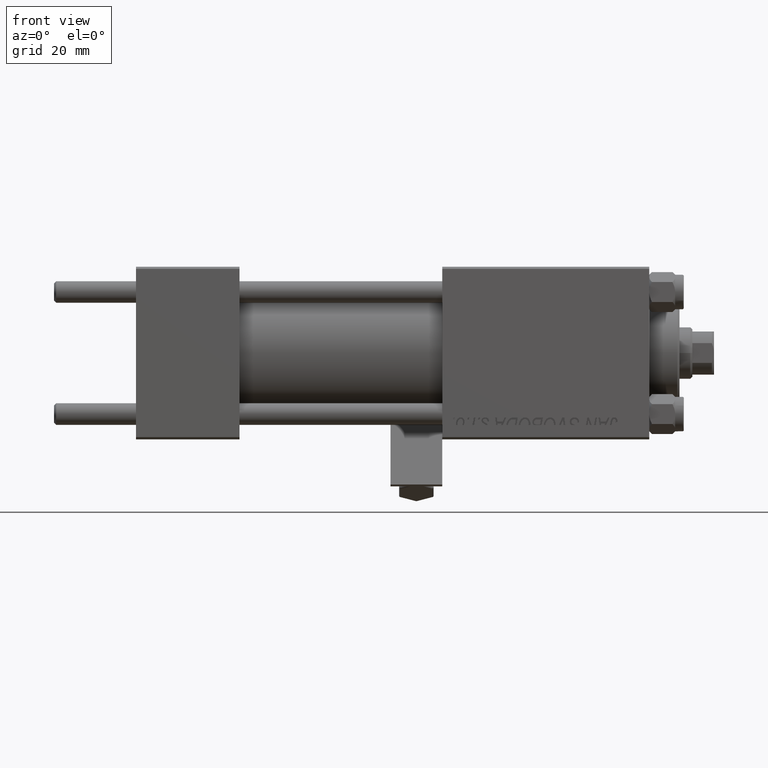
[diagram: clean part render]
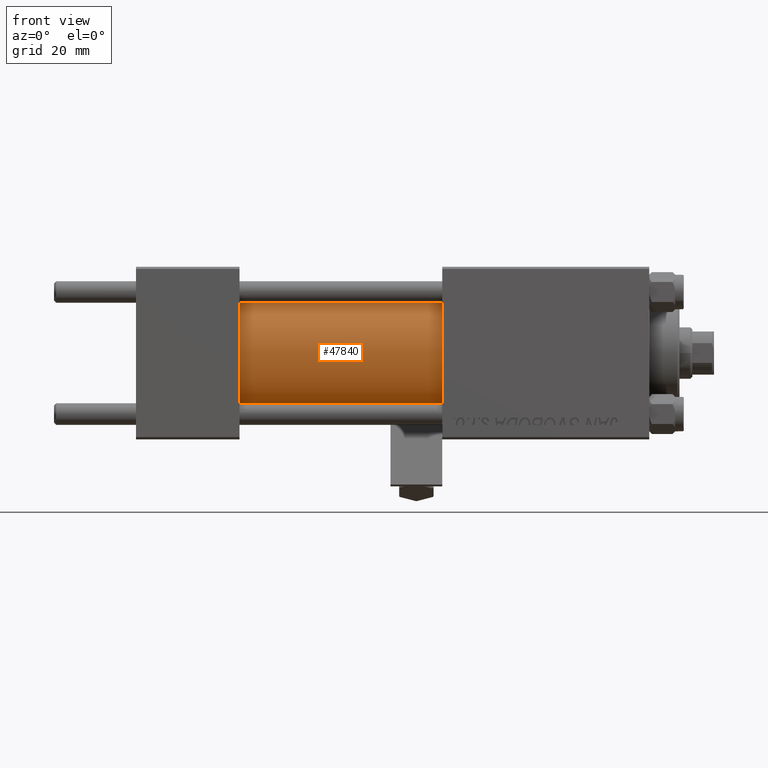
[diagram: same view with one face highlighted and labeled with its STEP entity id]
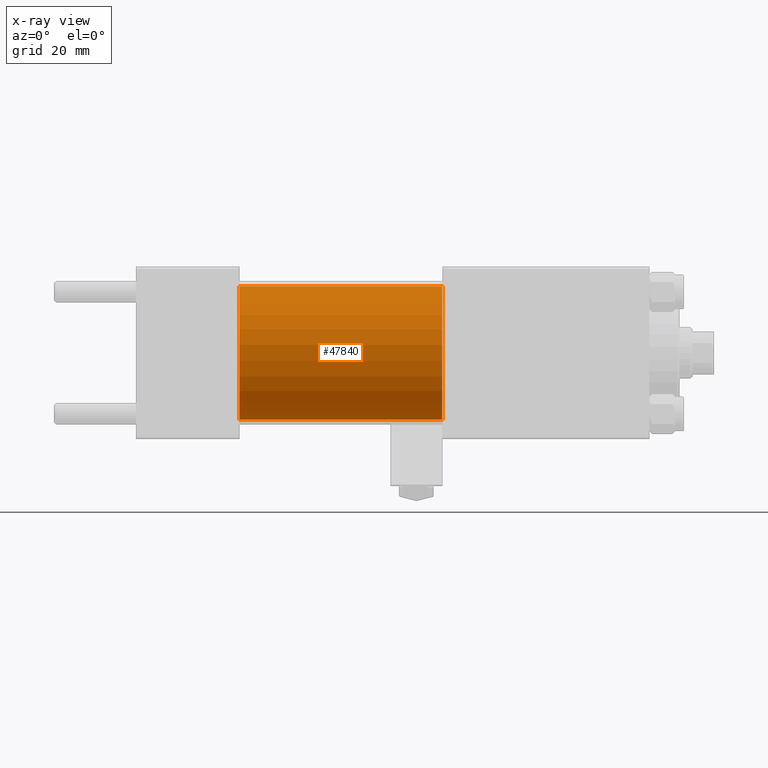
[diagram: x-ray of the same camera — body ghosted, the highlighted face saturated]
A machine part, front view. The second image highlights one B-rep face of the part: STEP entity #47840.
The next image is the same camera in x-ray: the body ghosted, the highlighted face saturated — about 0% of this face is hidden behind the body in this view.
In plain terms, the highlighted cylindrical surface (partial cylindrical patch) has radius 15.5 mm, axis along (-1, -0, -0).
Its self-contained STEP definition (entity closure, byte-faithful):
#1912 = CARTESIAN_POINT ( 'NONE',  ( 24.00000000000000000, 0.000000000000000000, 15.50000000000000000 ) ) ;
#1923 = LINE ( 'NONE', #45106, #32257 ) ;
#3569 = CARTESIAN_POINT ( 'NONE',  ( 71.00000000000001421, 0.000000000000000000, 15.50000000000000000 ) ) ;
#9900 = DIRECTION ( 'NONE',  ( -1.000000000000000000, -0.000000000000000000, -0.000000000000000000 ) ) ;
#10296 = DIRECTION ( 'NONE',  ( 0.000000000000000000, 0.000000000000000000, 1.000000000000000000 ) ) ;
#11322 = AXIS2_PLACEMENT_3D ( 'NONE', #11450, #30703, #27109 ) ;
#11450 = CARTESIAN_POINT ( 'NONE',  ( 71.00000000000001421, 0.000000000000000000, 0.000000000000000000 ) ) ;
#12387 = CARTESIAN_POINT ( 'NONE',  ( 24.00000000000000000, 0.000000000000000000, 0.000000000000000000 ) ) ;
#14416 = DIRECTION ( 'NONE',  ( 1.000000000000000000, 0.000000000000000000, 0.000000000000000000 ) ) ;
#15523 = DIRECTION ( 'NONE',  ( -1.000000000000000000, -0.000000000000000000, -0.000000000000000000 ) ) ;
#16282 = VERTEX_POINT ( 'NONE', #1912 ) ;
#16838 = CARTESIAN_POINT ( 'NONE',  ( 24.00000000000000000, 1.898202538678397557E-15, -15.50000000000000000 ) ) ;
#21573 = VERTEX_POINT ( 'NONE', #23873 ) ;
#21763 = ORIENTED_EDGE ( 'NONE', *, *, #49538, .F. ) ;
#23873 = CARTESIAN_POINT ( 'NONE',  ( 71.00000000000001421, 1.898202538678397557E-15, -15.50000000000000000 ) ) ;
#26957 = VERTEX_POINT ( 'NONE', #3569 ) ;
#27109 = DIRECTION ( 'NONE',  ( 0.000000000000000000, 0.000000000000000000, -1.000000000000000000 ) ) ;
#29158 = AXIS2_PLACEMENT_3D ( 'NONE', #12387, #14416, #10296 ) ;
#29407 = DIRECTION ( 'NONE',  ( 0.000000000000000000, 0.000000000000000000, 1.000000000000000000 ) ) ;
#30703 = DIRECTION ( 'NONE',  ( 1.000000000000000000, 0.000000000000000000, 0.000000000000000000 ) ) ;
#31087 = EDGE_CURVE ( 'NONE', #21573, #41878, #35772, .T. ) ;
#31252 = ORIENTED_EDGE ( 'NONE', *, *, #43340, .T. ) ;
#32257 = VECTOR ( 'NONE', #9900, 1000.000000000000000 ) ;
#33425 = CIRCLE ( 'NONE', #11322, 15.50000000000000000 ) ;
#33754 = CYLINDRICAL_SURFACE ( 'NONE', #44055, 15.50000000000000000 ) ;
#35772 = LINE ( 'NONE', #43498, #49382 ) ;
#39006 = EDGE_CURVE ( 'NONE', #26957, #16282, #1923, .T. ) ;
#39757 = ORIENTED_EDGE ( 'NONE', *, *, #31087, .F. ) ;
#41489 = FACE_OUTER_BOUND ( 'NONE', #46762, .T. ) ;
#41878 = VERTEX_POINT ( 'NONE', #16838 ) ;
#42003 = CARTESIAN_POINT ( 'NONE',  ( 71.00000000000001421, 0.000000000000000000, 0.000000000000000000 ) ) ;
#43340 = EDGE_CURVE ( 'NONE', #16282, #41878, #48028, .T. ) ;
#43498 = CARTESIAN_POINT ( 'NONE',  ( 71.00000000000001421, 1.898202538678397557E-15, -15.50000000000000000 ) ) ;
#44055 = AXIS2_PLACEMENT_3D ( 'NONE', #42003, #49455, #29407 ) ;
#45106 = CARTESIAN_POINT ( 'NONE',  ( 71.00000000000001421, 0.000000000000000000, 15.50000000000000000 ) ) ;
#46433 = ORIENTED_EDGE ( 'NONE', *, *, #39006, .T. ) ;
#46762 = EDGE_LOOP ( 'NONE', ( #39757, #21763, #46433, #31252 ) ) ;
#47840 = ADVANCED_FACE ( 'NONE', ( #41489 ), #33754, .T. ) ;
#48028 = CIRCLE ( 'NONE', #29158, 15.50000000000000000 ) ;
#49382 = VECTOR ( 'NONE', #15523, 1000.000000000000000 ) ;
#49455 = DIRECTION ( 'NONE',  ( -1.000000000000000000, -0.000000000000000000, -0.000000000000000000 ) ) ;
#49538 = EDGE_CURVE ( 'NONE', #26957, #21573, #33425, .T. ) ;